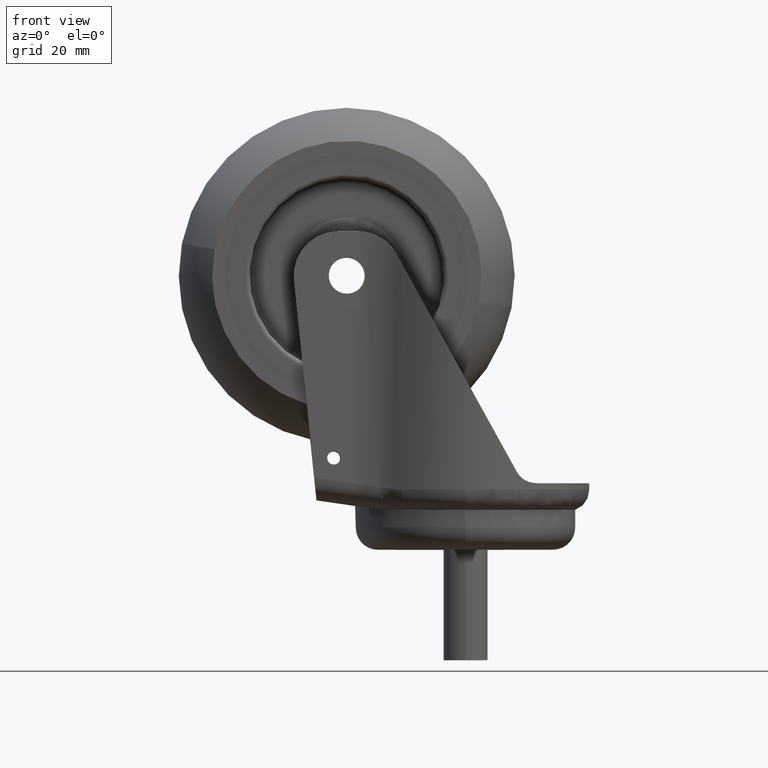
[diagram: clean part render]
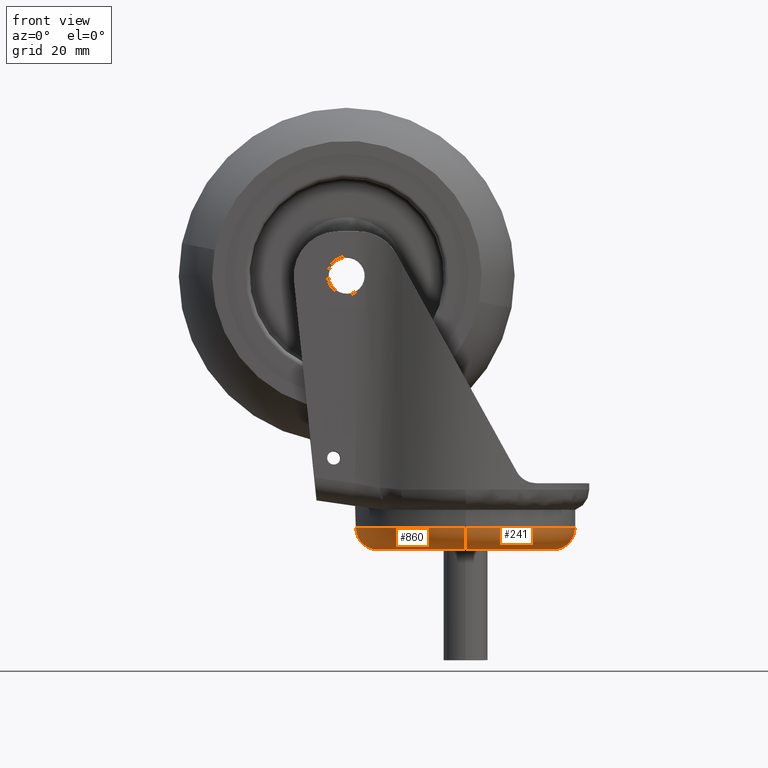
[diagram: same view with one multi-face feature highlighted, each face labeled with its STEP entity id]
A machine part, front view. The highlighted faces form ONE feature: a constant-radius fillet chain: 2 tangent blend faces with common blend radius 5 mm. The faces share edges in the B-rep.
Their STEP definitions:
[1] entity #241 (Torus):
#225 = VERTEX_POINT ( 'NONE', #1646 ) ;
#226 = ORIENTED_EDGE ( 'NONE', *, *, #228, .F. ) ;
#227 = EDGE_CURVE ( 'NONE', #233, #225, #1644, .T. ) ;
#228 = EDGE_CURVE ( 'NONE', #235, #233, #1671, .T. ) ;
#230 = EDGE_CURVE ( 'NONE', #239, #225, #1666, .T. ) ;
#231 = ORIENTED_EDGE ( 'NONE', *, *, #230, .T. ) ;
#232 = ORIENTED_EDGE ( 'NONE', *, *, #227, .F. ) ;
#233 = VERTEX_POINT ( 'NONE', #1661 ) ;
#235 = VERTEX_POINT ( 'NONE', #1659 ) ;
#236 = EDGE_CURVE ( 'NONE', #239, #235, #1658, .T. ) ;
#239 = VERTEX_POINT ( 'NONE', #1696 ) ;
#240 = EDGE_LOOP ( 'NONE', ( #243, #231, #232, #226 ) ) ;
#241 = ADVANCED_FACE ( 'NONE', ( #1695 ), #1694, .T. ) ;
#243 = ORIENTED_EDGE ( 'NONE', *, *, #236, .F. ) ;
#1642 = CARTESIAN_POINT ( 'NONE',  ( -3.469446951953614200E-014, 40.00000000000007100, -9.000000000000071100 ) ) ;
#1643 = AXIS2_PLACEMENT_3D ( 'NONE', #1642, #1673, #1672 ) ;
#1644 = CIRCLE ( 'NONE', #1643, 20.00000000000004600 ) ;
#1646 = CARTESIAN_POINT ( 'NONE',  ( 19.99999999999996400, 40.00000000000007100, -9.000000000000071100 ) ) ;
#1654 = DIRECTION ( 'NONE',  ( -1.000000000000000000, 0.0000000000000000000, 0.0000000000000000000 ) ) ;
#1655 = DIRECTION ( 'NONE',  ( 2.168404344970999200E-019, 4.336808689941998500E-019, 1.000000000000000000 ) ) ;
#1656 = CARTESIAN_POINT ( 'NONE',  ( 0.0000000000000000000, 40.00000000000007100, -4.000000000000034600 ) ) ;
#1657 = AXIS2_PLACEMENT_3D ( 'NONE', #1656, #1655, #1654 ) ;
#1658 = CIRCLE ( 'NONE', #1657, 25.00000000000005700 ) ;
#1659 = CARTESIAN_POINT ( 'NONE',  ( -25.00000000000000000, 40.00000000000007100, -4.000000000000034600 ) ) ;
#1661 = CARTESIAN_POINT ( 'NONE',  ( -20.00000000000008200, 40.00000000000007100, -9.000000000000071100 ) ) ;
#1662 = DIRECTION ( 'NONE',  ( -1.000000000000000000, 0.0000000000000000000, 0.0000000000000000000 ) ) ;
#1663 = DIRECTION ( 'NONE',  ( -1.225143160952705100E-016, 1.000000000000000000, -4.336808689941998500E-019 ) ) ;
#1664 = CARTESIAN_POINT ( 'NONE',  ( 20.00000000000004600, 40.00000000000007100, -4.000000000000034600 ) ) ;
#1665 = AXIS2_PLACEMENT_3D ( 'NONE', #1664, #1663, #1662 ) ;
#1666 = CIRCLE ( 'NONE', #1665, 5.000000000000000900 ) ;
#1667 = DIRECTION ( 'NONE',  ( 0.0000000000000000000, 0.0000000000000000000, -1.000000000000000000 ) ) ;
#1668 = DIRECTION ( 'NONE',  ( 5.368071303224117000E-020, -1.000000000000000000, 4.336808689941998500E-019 ) ) ;
#1669 = CARTESIAN_POINT ( 'NONE',  ( -20.00000000000004600, 40.00000000000007100, -4.000000000000034600 ) ) ;
#1670 = AXIS2_PLACEMENT_3D ( 'NONE', #1669, #1668, #1667 ) ;
#1671 = CIRCLE ( 'NONE', #1670, 5.000000000000000900 ) ;
#1672 = DIRECTION ( 'NONE',  ( -1.000000000000000000, 0.0000000000000000000, 0.0000000000000000000 ) ) ;
#1673 = DIRECTION ( 'NONE',  ( -2.168404344970999200E-019, -4.336808689941998500E-019, -1.000000000000000000 ) ) ;
#1690 = DIRECTION ( 'NONE',  ( -1.000000000000000000, 9.403954806578216500E-038, 2.168404344970999200E-019 ) ) ;
#1691 = DIRECTION ( 'NONE',  ( -2.168404344970999200E-019, -4.336808689941998500E-019, -1.000000000000000000 ) ) ;
#1692 = CARTESIAN_POINT ( 'NONE',  ( 0.0000000000000000000, 40.00000000000007100, -4.000000000000034600 ) ) ;
#1693 = AXIS2_PLACEMENT_3D ( 'NONE', #1692, #1691, #1690 ) ;
#1694 = TOROIDAL_SURFACE ( 'NONE', #1693, 20.00000000000000000, 5.000000000000000000 ) ;
#1695 = FACE_OUTER_BOUND ( 'NONE', #240, .T. ) ;
#1696 = CARTESIAN_POINT ( 'NONE',  ( 25.00000000000000000, 40.00000000000007100, -4.000000000000034600 ) ) ;
[2] entity #860 (Torus):
#225 = VERTEX_POINT ( 'NONE', #1646 ) ;
#228 = EDGE_CURVE ( 'NONE', #235, #233, #1671, .T. ) ;
#230 = EDGE_CURVE ( 'NONE', #239, #225, #1666, .T. ) ;
#233 = VERTEX_POINT ( 'NONE', #1661 ) ;
#235 = VERTEX_POINT ( 'NONE', #1659 ) ;
#239 = VERTEX_POINT ( 'NONE', #1696 ) ;
#860 = ADVANCED_FACE ( 'NONE', ( #3500 ), #3497, .T. ) ;
#861 = EDGE_LOOP ( 'NONE', ( #862, #863, #864, #865 ) ) ;
#862 = ORIENTED_EDGE ( 'NONE', *, *, #230, .F. ) ;
#863 = ORIENTED_EDGE ( 'NONE', *, *, #872, .F. ) ;
#864 = ORIENTED_EDGE ( 'NONE', *, *, #228, .T. ) ;
#865 = ORIENTED_EDGE ( 'NONE', *, *, #887, .F. ) ;
#872 = EDGE_CURVE ( 'NONE', #235, #239, #3486, .T. ) ;
#887 = EDGE_CURVE ( 'NONE', #225, #233, #3532, .T. ) ;
#1646 = CARTESIAN_POINT ( 'NONE',  ( 19.99999999999996400, 40.00000000000007100, -9.000000000000071100 ) ) ;
#1659 = CARTESIAN_POINT ( 'NONE',  ( -25.00000000000000000, 40.00000000000007100, -4.000000000000034600 ) ) ;
#1661 = CARTESIAN_POINT ( 'NONE',  ( -20.00000000000008200, 40.00000000000007100, -9.000000000000071100 ) ) ;
#1662 = DIRECTION ( 'NONE',  ( -1.000000000000000000, 0.0000000000000000000, 0.0000000000000000000 ) ) ;
#1663 = DIRECTION ( 'NONE',  ( -1.225143160952705100E-016, 1.000000000000000000, -4.336808689941998500E-019 ) ) ;
#1664 = CARTESIAN_POINT ( 'NONE',  ( 20.00000000000004600, 40.00000000000007100, -4.000000000000034600 ) ) ;
#1665 = AXIS2_PLACEMENT_3D ( 'NONE', #1664, #1663, #1662 ) ;
#1666 = CIRCLE ( 'NONE', #1665, 5.000000000000000900 ) ;
#1667 = DIRECTION ( 'NONE',  ( 0.0000000000000000000, 0.0000000000000000000, -1.000000000000000000 ) ) ;
#1668 = DIRECTION ( 'NONE',  ( 5.368071303224117000E-020, -1.000000000000000000, 4.336808689941998500E-019 ) ) ;
#1669 = CARTESIAN_POINT ( 'NONE',  ( -20.00000000000004600, 40.00000000000007100, -4.000000000000034600 ) ) ;
#1670 = AXIS2_PLACEMENT_3D ( 'NONE', #1669, #1668, #1667 ) ;
#1671 = CIRCLE ( 'NONE', #1670, 5.000000000000000900 ) ;
#1696 = CARTESIAN_POINT ( 'NONE',  ( 25.00000000000000000, 40.00000000000007100, -4.000000000000034600 ) ) ;
#3481 = AXIS2_PLACEMENT_3D ( 'NONE', #3542, #3541, #3540 ) ;
#3486 = CIRCLE ( 'NONE', #3481, 25.00000000000005700 ) ;
#3494 = DIRECTION ( 'NONE',  ( -1.000000000000000000, 9.403954806578216500E-038, 2.168404344970999200E-019 ) ) ;
#3495 = DIRECTION ( 'NONE',  ( -2.168404344970999200E-019, -4.336808689941998500E-019, -1.000000000000000000 ) ) ;
#3496 = AXIS2_PLACEMENT_3D ( 'NONE', #3499, #3495, #3494 ) ;
#3497 = TOROIDAL_SURFACE ( 'NONE', #3496, 20.00000000000000000, 5.000000000000000000 ) ;
#3499 = CARTESIAN_POINT ( 'NONE',  ( 0.0000000000000000000, 40.00000000000007100, -4.000000000000034600 ) ) ;
#3500 = FACE_OUTER_BOUND ( 'NONE', #861, .T. ) ;
#3528 = DIRECTION ( 'NONE',  ( -1.000000000000000000, 0.0000000000000000000, 0.0000000000000000000 ) ) ;
#3529 = DIRECTION ( 'NONE',  ( -2.168404344970999200E-019, -4.336808689941998500E-019, -1.000000000000000000 ) ) ;
#3530 = CARTESIAN_POINT ( 'NONE',  ( -3.469446951953614200E-014, 40.00000000000007100, -9.000000000000071100 ) ) ;
#3531 = AXIS2_PLACEMENT_3D ( 'NONE', #3530, #3529, #3528 ) ;
#3532 = CIRCLE ( 'NONE', #3531, 20.00000000000004600 ) ;
#3540 = DIRECTION ( 'NONE',  ( -1.000000000000000000, 0.0000000000000000000, 0.0000000000000000000 ) ) ;
#3541 = DIRECTION ( 'NONE',  ( 2.168404344970999200E-019, 4.336808689941998500E-019, 1.000000000000000000 ) ) ;
#3542 = CARTESIAN_POINT ( 'NONE',  ( 0.0000000000000000000, 40.00000000000007100, -4.000000000000034600 ) ) ;